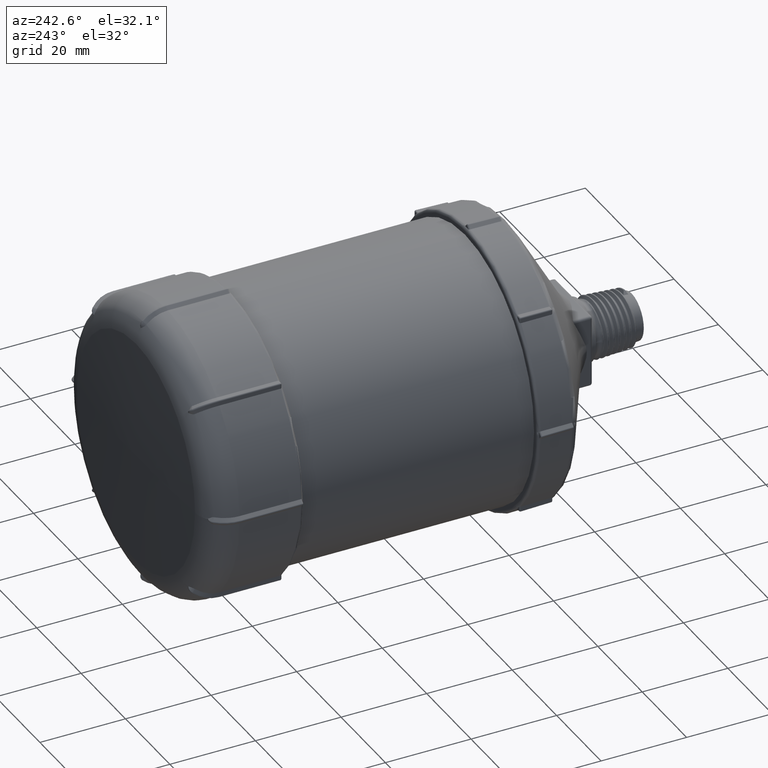
[diagram: clean part render]
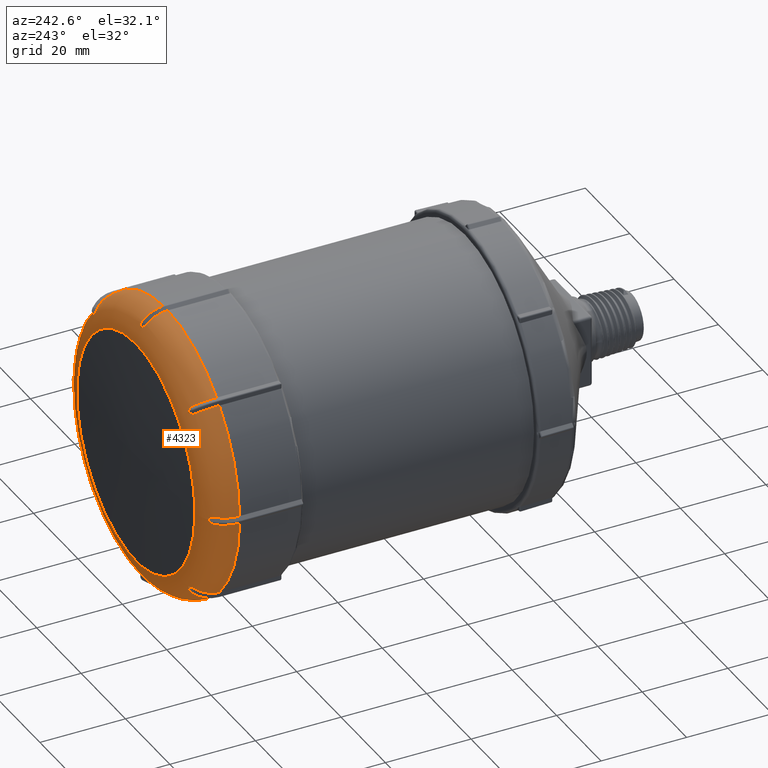
[diagram: same view with one face highlighted and labeled with its STEP entity id]
A machine part, auxiliary view. The second image highlights one B-rep face of the part: STEP entity #4323.
In plain terms, the highlighted toroidal blend (fillet) surface has major radius 26.25 mm and minor (blend) radius 7 mm.
Its self-contained STEP definition (entity closure, byte-faithful):
#154=TOROIDAL_SURFACE('',#4698,26.25,7.);
#235=CIRCLE('',#4504,26.6227180527383);
#236=CIRCLE('',#4505,26.6227180527383);
#257=CIRCLE('',#4529,33.25);
#258=CIRCLE('',#4531,33.25);
#259=CIRCLE('',#4533,33.25);
#260=CIRCLE('',#4535,33.25);
#261=CIRCLE('',#4537,33.25);
#262=CIRCLE('',#4539,33.25);
#263=CIRCLE('',#4541,33.25);
#264=CIRCLE('',#4543,33.25);
#328=CIRCLE('',#4699,7.);
#594=FACE_OUTER_BOUND('',#856,.T.);
#856=EDGE_LOOP('',(#3061,#3062,#3063,#3064,#3065,#3066,#3067,#3068,#3069,
#3070,#3071,#3072,#3073,#3074,#3075,#3076,#3077,#3078,#3079,#3080,#3081,
#3082,#3083,#3084,#3085,#3086,#3087,#3088,#3089,#3090,#3091,#3092,#3093,
#3094,#3095,#3096,#3097,#3098,#3099,#3100,#3101,#3102,#3103,#3104,#3105,
#3106,#3107,#3108,#3109,#3110,#3111,#3112,#3113));
#1041=B_SPLINE_CURVE_WITH_KNOTS('',3,(#6847,#6848,#6849,#6850,#6851,#6852,
#6853,#6854,#6855,#6856),.UNSPECIFIED.,.F.,.F.,(4,2,2,2,4),(-0.266693742537213,
-0.224381580550006,-0.169120604108492,-0.0868780232982851,-0.0166395988727938),
 .UNSPECIFIED.);
#1042=B_SPLINE_CURVE_WITH_KNOTS('',3,(#6861,#6862,#6863,#6864,#6865,#6866,
#6867,#6868),.UNSPECIFIED.,.F.,.F.,(4,2,2,4),(-0.60681111886429,-0.440186208378555,
-0.273579896233568,-0.0567221450146192),.UNSPECIFIED.);
#1043=B_SPLINE_CURVE_WITH_KNOTS('',3,(#6875,#6876,#6877,#6878,#6879,#6880,
#6881,#6882),.UNSPECIFIED.,.F.,.F.,(4,2,2,4),(-0.10109423238601,-0.0638648388179152,
-0.031133432050819,-0.00484871395737871),.UNSPECIFIED.);
#1044=B_SPLINE_CURVE_WITH_KNOTS('',3,(#6887,#6888,#6889,#6890,#6891,#6892,
#6893,#6894,#6895,#6896,#6897,#6898,#6899,#6900),.UNSPECIFIED.,.F.,.F.,
(4,2,2,2,2,2,4),(0.0618802775427655,0.0622922009236153,0.0737745342424055,
0.083668378242921,0.0930614179928642,0.102862978467034,0.110008647193263),
 .UNSPECIFIED.);
#1045=B_SPLINE_CURVE_WITH_KNOTS('',3,(#6907,#6908,#6909,#6910,#6911,#6912,
#6913,#6914),.UNSPECIFIED.,.F.,.F.,(4,2,2,4),(-0.550127142300356,-0.440099110652061,
-0.273358408319301,0.),.UNSPECIFIED.);
#1046=B_SPLINE_CURVE_WITH_KNOTS('',3,(#6924,#6925,#6926,#6927,#6928,#6929,
#6930,#6931),.UNSPECIFIED.,.F.,.F.,(4,2,2,4),(-0.182498993991071,-0.140588883657613,
-0.0724285203282122,-0.0161608932762641),.UNSPECIFIED.);
#1047=B_SPLINE_CURVE_WITH_KNOTS('',3,(#6936,#6937,#6938,#6939,#6940,#6941,
#6942,#6943),.UNSPECIFIED.,.F.,.F.,(4,2,2,4),(-0.589281542167866,-0.431428210677685,
-0.273597307804808,-0.039203287886933),.UNSPECIFIED.);
#1048=B_SPLINE_CURVE_WITH_KNOTS('',3,(#6950,#6951,#6952,#6953,#6954,#6955,
#6956,#6957),.UNSPECIFIED.,.F.,.F.,(4,2,2,4),(-0.101197686285233,-0.0637149132302516,
-0.0311245010484486,-0.0048487129692068),.UNSPECIFIED.);
#1049=B_SPLINE_CURVE_WITH_KNOTS('',3,(#6963,#6964,#6965,#6966,#6967,#6968,
#6969,#6970,#6971,#6972),.UNSPECIFIED.,.F.,.F.,(4,2,2,2,4),(0.0620317330800001,
0.06241652451229,0.0739433385980161,0.0838749257742064,0.086180058831698),
 .UNSPECIFIED.);
#1050=B_SPLINE_CURVE_WITH_KNOTS('',3,(#6974,#6975,#6976,#6977,#6978,#6979,
#6980,#6981),.UNSPECIFIED.,.F.,.F.,(4,2,2,4),(0.086180058831698,0.093302264181356,
0.103131055432892,0.11033379116617),.UNSPECIFIED.);
#1051=B_SPLINE_CURVE_WITH_KNOTS('',3,(#6987,#6988,#6989,#6990,#6991,#6992,
#6993,#6994),.UNSPECIFIED.,.F.,.F.,(4,2,2,4),(-0.55009548811372,-0.43133739867235,
-0.273354942292843,0.),.UNSPECIFIED.);
#1052=B_SPLINE_CURVE_WITH_KNOTS('',3,(#7004,#7005,#7006,#7007,#7008,#7009,
#7010,#7011,#7012,#7013),.UNSPECIFIED.,.F.,.F.,(4,2,2,2,4),(-0.266693742548772,
-0.224381580558012,-0.169120604111871,-0.0868780232985852,-0.0166395988728055),
 .UNSPECIFIED.);
#1053=B_SPLINE_CURVE_WITH_KNOTS('',3,(#7018,#7019,#7020,#7021,#7022,#7023,
#7024,#7025),.UNSPECIFIED.,.F.,.F.,(4,2,2,4),(-0.606811118864284,-0.44018620837856,
-0.273579896233573,-0.0567221450146192),.UNSPECIFIED.);
#1054=B_SPLINE_CURVE_WITH_KNOTS('',3,(#7032,#7033,#7034,#7035,#7036,#7037,
#7038,#7039),.UNSPECIFIED.,.F.,.F.,(4,2,2,4),(-0.101094232386615,-0.0638648388186382,
-0.0311334320512011,-0.00484871395738747),.UNSPECIFIED.);
#1055=B_SPLINE_CURVE_WITH_KNOTS('',3,(#7044,#7045,#7046,#7047,#7048,#7049,
#7050,#7051,#7052,#7053,#7054,#7055,#7056,#7057),.UNSPECIFIED.,.F.,.F.,
(4,2,2,2,2,2,4),(0.0618802657549274,0.0622921890203796,0.0737745198743033,
0.0836683617487379,0.0930613994787556,0.102862957842678,0.110008625053817),
 .UNSPECIFIED.);
#1056=B_SPLINE_CURVE_WITH_KNOTS('',3,(#7064,#7065,#7066,#7067,#7068,#7069,
#7070,#7071),.UNSPECIFIED.,.F.,.F.,(4,2,2,4),(-0.550127142300375,-0.440099110652069,
-0.273358408319302,0.),.UNSPECIFIED.);
#1057=B_SPLINE_CURVE_WITH_KNOTS('',3,(#7081,#7082,#7083,#7084,#7085,#7086,
#7087,#7088),.UNSPECIFIED.,.F.,.F.,(4,2,2,4),(-0.182498993991008,-0.140588883657568,
-0.0724285203281928,-0.016160893276263),.UNSPECIFIED.);
#1058=B_SPLINE_CURVE_WITH_KNOTS('',3,(#7093,#7094,#7095,#7096,#7097,#7098,
#7099,#7100),.UNSPECIFIED.,.F.,.F.,(4,2,2,4),(-0.589281542167862,-0.431428210677677,
-0.273597307804806,-0.039203287886933),.UNSPECIFIED.);
#1059=B_SPLINE_CURVE_WITH_KNOTS('',3,(#7107,#7108,#7109,#7110,#7111,#7112,
#7113,#7114),.UNSPECIFIED.,.F.,.F.,(4,2,2,4),(-0.10119768628387,-0.0637149132293729,
-0.0311245010481266,-0.00484871296919956),.UNSPECIFIED.);
#1060=B_SPLINE_CURVE_WITH_KNOTS('',3,(#7119,#7120,#7121,#7122,#7123,#7124,
#7125,#7126,#7127,#7128,#7129,#7130,#7131,#7132),.UNSPECIFIED.,.F.,.F.,
(4,2,2,2,2,2,4),(0.0620316763252,0.0624164672322218,0.0739432694393886,
0.083874846370399,0.0933021750456147,0.103130956139006,0.110333684539472),
 .UNSPECIFIED.);
#1061=B_SPLINE_CURVE_WITH_KNOTS('',3,(#7139,#7140,#7141,#7142,#7143,#7144,
#7145,#7146),.UNSPECIFIED.,.F.,.F.,(4,2,2,4),(-0.550095488113724,-0.431337398672351,
-0.273354942292843,0.),.UNSPECIFIED.);
#1062=B_SPLINE_CURVE_WITH_KNOTS('',3,(#7156,#7157,#7158,#7159,#7160,#7161,
#7162,#7163,#7164,#7165),.UNSPECIFIED.,.F.,.F.,(4,2,2,2,4),(-0.266693742541709,
-0.22438158055317,-0.169120604109935,-0.0868780232984713,-0.0166395988728016),
 .UNSPECIFIED.);
#1063=B_SPLINE_CURVE_WITH_KNOTS('',3,(#7170,#7171,#7172,#7173,#7174,#7175,
#7176,#7177),.UNSPECIFIED.,.F.,.F.,(4,2,2,4),(-0.606811118864268,-0.440186208378543,
-0.273579896233563,-0.0567221450146181),.UNSPECIFIED.);
#1064=B_SPLINE_CURVE_WITH_KNOTS('',3,(#7184,#7185,#7186,#7187,#7188,#7189,
#7190,#7191),.UNSPECIFIED.,.F.,.F.,(4,2,2,4),(-0.101094232385515,-0.0638648388175834,
-0.0311334320506976,-0.00484871395737683),.UNSPECIFIED.);
#1065=B_SPLINE_CURVE_WITH_KNOTS('',3,(#7196,#7197,#7198,#7199,#7200,#7201,
#7202,#7203,#7204,#7205,#7206,#7207,#7208,#7209),.UNSPECIFIED.,.F.,.F.,
(4,2,2,2,2,2,4),(0.0618802680001307,0.0622921912875559,0.0737745226108094,
0.083668364890063,0.093061403004688,0.102862961770424,0.110008629270054),
 .UNSPECIFIED.);
#1066=B_SPLINE_CURVE_WITH_KNOTS('',3,(#7216,#7217,#7218,#7219,#7220,#7221,
#7222,#7223),.UNSPECIFIED.,.F.,.F.,(4,2,2,4),(-0.550127142300358,-0.440099110652059,
-0.273358408319299,0.),.UNSPECIFIED.);
#1067=B_SPLINE_CURVE_WITH_KNOTS('',3,(#7233,#7234,#7235,#7236,#7237,#7238,
#7239,#7240),.UNSPECIFIED.,.F.,.F.,(4,2,2,4),(-0.182498993991151,-0.140588883657601,
-0.0724285203282056,-0.0161608932762638),.UNSPECIFIED.);
#1068=B_SPLINE_CURVE_WITH_KNOTS('',3,(#7245,#7246,#7247,#7248,#7249,#7250,
#7251,#7252),.UNSPECIFIED.,.F.,.F.,(4,2,2,4),(-0.589281542167862,-0.431428210677677,
-0.273597307804806,-0.0392032878869331),.UNSPECIFIED.);
#1069=B_SPLINE_CURVE_WITH_KNOTS('',3,(#7259,#7260,#7261,#7262,#7263,#7264,
#7265,#7266),.UNSPECIFIED.,.F.,.F.,(4,2,2,4),(-0.101197686284344,-0.0637149132296148,
-0.0311245010481929,-0.0048487129692011),.UNSPECIFIED.);
#1070=B_SPLINE_CURVE_WITH_KNOTS('',3,(#7271,#7272,#7273,#7274,#7275,#7276,
#7277,#7278,#7279,#7280,#7281,#7282,#7283,#7284),.UNSPECIFIED.,.F.,.F.,
(4,2,2,2,2,2,4),(0.0620317267717083,0.0624165181456156,0.073943330911126,
0.0838749169486331,0.0933022542741401,0.103131044396664,0.110333779314955),
 .UNSPECIFIED.);
#1071=B_SPLINE_CURVE_WITH_KNOTS('',3,(#7291,#7292,#7293,#7294,#7295,#7296,
#7297,#7298),.UNSPECIFIED.,.F.,.F.,(4,2,2,4),(-0.550095488113724,-0.431337398672351,
-0.273354942292844,0.),.UNSPECIFIED.);
#1072=B_SPLINE_CURVE_WITH_KNOTS('',3,(#7308,#7309,#7310,#7311,#7312,#7313,
#7314,#7315,#7316,#7317),.UNSPECIFIED.,.F.,.F.,(4,2,2,2,4),(-0.266693742544422,
-0.224381580555024,-0.169120604110687,-0.0868780232985246,-0.016639598872803),
 .UNSPECIFIED.);
#1073=B_SPLINE_CURVE_WITH_KNOTS('',3,(#7322,#7323,#7324,#7325,#7326,#7327,
#7328,#7329),.UNSPECIFIED.,.F.,.F.,(4,2,2,4),(-0.606811118864274,-0.440186208378549,
-0.273579896233567,-0.0567221450146185),.UNSPECIFIED.);
#1074=B_SPLINE_CURVE_WITH_KNOTS('',3,(#7336,#7337,#7338,#7339,#7340,#7341,
#7342,#7343),.UNSPECIFIED.,.F.,.F.,(4,2,2,4),(-0.101094232386237,-0.0638648388183031,
-0.0311334320510512,-0.00484871395738433),.UNSPECIFIED.);
#1075=B_SPLINE_CURVE_WITH_KNOTS('',3,(#7348,#7349,#7350,#7351,#7352,#7353,
#7354,#7355,#7356,#7357,#7358,#7359,#7360,#7361),.UNSPECIFIED.,.F.,.F.,
(4,2,2,2,2,2,4),(0.0618802657549827,0.0622921890204326,0.0737745198743047,
0.0836683617486942,0.0930613994786701,0.102862957842549,0.110008625053662),
 .UNSPECIFIED.);
#1076=B_SPLINE_CURVE_WITH_KNOTS('',3,(#7368,#7369,#7370,#7371,#7372,#7373,
#7374,#7375),.UNSPECIFIED.,.F.,.F.,(4,2,2,4),(-0.550127142300358,-0.440099110652059,
-0.273358408319299,0.),.UNSPECIFIED.);
#1077=B_SPLINE_CURVE_WITH_KNOTS('',3,(#7385,#7386,#7387,#7388,#7389,#7390,
#7391,#7392),.UNSPECIFIED.,.F.,.F.,(4,2,2,4),(-0.565831572029104,-0.420371247861546,
-0.275267212824914,-0.0157711149884324),.UNSPECIFIED.);
#1078=B_SPLINE_CURVE_WITH_KNOTS('',3,(#7394,#7395,#7396,#7397,#7398,#7399,
#7400,#7401,#7402,#7403,#7404,#7405),.UNSPECIFIED.,.F.,.F.,(4,2,2,2,2,4),
(-0.165384805071305,-0.15429783330736,-0.132961413190081,-0.0844267115698874,
-0.0418224386313113,-0.00155470645280122),.UNSPECIFIED.);
#1079=B_SPLINE_CURVE_WITH_KNOTS('',3,(#7407,#7408,#7409,#7410,#7411,#7412,
#7413,#7414,#7415,#7416,#7417,#7418),.UNSPECIFIED.,.F.,.F.,(4,2,2,2,2,4),
(0.,0.0119472215682938,0.0221954810434297,0.0319006000091722,0.0410202241731146,
0.0496896925043201),.UNSPECIFIED.);
#1080=B_SPLINE_CURVE_WITH_KNOTS('',3,(#7420,#7421,#7422,#7423,#7424,#7425,
#7426,#7427,#7428,#7429),.UNSPECIFIED.,.F.,.F.,(4,2,2,2,4),(-0.13030314548922,
-0.0776834043144477,-0.0412652044363636,-0.0168007444675564,-0.00486365675889868),
 .UNSPECIFIED.);
#1081=B_SPLINE_CURVE_WITH_KNOTS('',3,(#7430,#7431,#7432,#7433,#7434,#7435,
#7436,#7437),.UNSPECIFIED.,.F.,.F.,(4,2,2,4),(-0.55004662073099,-0.419857439276201,
-0.273129354538646,0.),.UNSPECIFIED.);
#1615=VERTEX_POINT('',#6332);
#1616=VERTEX_POINT('',#6334);
#1652=VERTEX_POINT('',#6699);
#1653=VERTEX_POINT('',#6701);
#1654=VERTEX_POINT('',#6705);
#1655=VERTEX_POINT('',#6707);
#1656=VERTEX_POINT('',#6711);
#1657=VERTEX_POINT('',#6713);
#1658=VERTEX_POINT('',#6717);
#1659=VERTEX_POINT('',#6719);
#1660=VERTEX_POINT('',#6723);
#1661=VERTEX_POINT('',#6725);
#1662=VERTEX_POINT('',#6729);
#1663=VERTEX_POINT('',#6731);
#1664=VERTEX_POINT('',#6735);
#1665=VERTEX_POINT('',#6737);
#1666=VERTEX_POINT('',#6741);
#1667=VERTEX_POINT('',#6743);
#1689=VERTEX_POINT('',#6845);
#1690=VERTEX_POINT('',#6846);
#1693=VERTEX_POINT('',#6873);
#1694=VERTEX_POINT('',#6874);
#1697=VERTEX_POINT('',#6922);
#1698=VERTEX_POINT('',#6923);
#1701=VERTEX_POINT('',#6948);
#1702=VERTEX_POINT('',#6949);
#1704=VERTEX_POINT('',#6962);
#1706=VERTEX_POINT('',#7002);
#1707=VERTEX_POINT('',#7003);
#1710=VERTEX_POINT('',#7030);
#1711=VERTEX_POINT('',#7031);
#1714=VERTEX_POINT('',#7079);
#1715=VERTEX_POINT('',#7080);
#1718=VERTEX_POINT('',#7105);
#1719=VERTEX_POINT('',#7106);
#1722=VERTEX_POINT('',#7154);
#1723=VERTEX_POINT('',#7155);
#1726=VERTEX_POINT('',#7182);
#1727=VERTEX_POINT('',#7183);
#1730=VERTEX_POINT('',#7231);
#1731=VERTEX_POINT('',#7232);
#1734=VERTEX_POINT('',#7257);
#1735=VERTEX_POINT('',#7258);
#1738=VERTEX_POINT('',#7306);
#1739=VERTEX_POINT('',#7307);
#1742=VERTEX_POINT('',#7334);
#1743=VERTEX_POINT('',#7335);
#1746=VERTEX_POINT('',#7384);
#1747=VERTEX_POINT('',#7393);
#1748=VERTEX_POINT('',#7406);
#1749=VERTEX_POINT('',#7419);
#2005=EDGE_CURVE('',#1615,#1616,#235,.T.);
#2006=EDGE_CURVE('',#1616,#1615,#236,.T.);
#2044=EDGE_CURVE('',#1653,#1652,#257,.T.);
#2047=EDGE_CURVE('',#1655,#1654,#258,.T.);
#2050=EDGE_CURVE('',#1657,#1656,#259,.T.);
#2053=EDGE_CURVE('',#1659,#1658,#260,.T.);
#2056=EDGE_CURVE('',#1661,#1660,#261,.T.);
#2059=EDGE_CURVE('',#1663,#1662,#262,.T.);
#2062=EDGE_CURVE('',#1665,#1664,#263,.T.);
#2065=EDGE_CURVE('',#1667,#1666,#264,.T.);
#2116=EDGE_CURVE('',#1689,#1690,#1041,.T.);
#2119=EDGE_CURVE('',#1658,#1689,#1042,.T.);
#2122=EDGE_CURVE('',#1693,#1694,#1043,.T.);
#2125=EDGE_CURVE('',#1690,#1693,#1044,.T.);
#2129=EDGE_CURVE('',#1694,#1661,#1045,.T.);
#2133=EDGE_CURVE('',#1697,#1698,#1046,.T.);
#2136=EDGE_CURVE('',#1656,#1697,#1047,.T.);
#2139=EDGE_CURVE('',#1701,#1702,#1048,.T.);
#2142=EDGE_CURVE('',#1698,#1704,#1049,.T.);
#2144=EDGE_CURVE('',#1704,#1701,#1050,.T.);
#2147=EDGE_CURVE('',#1702,#1659,#1051,.T.);
#2151=EDGE_CURVE('',#1706,#1707,#1052,.T.);
#2154=EDGE_CURVE('',#1654,#1706,#1053,.T.);
#2157=EDGE_CURVE('',#1710,#1711,#1054,.T.);
#2160=EDGE_CURVE('',#1707,#1710,#1055,.T.);
#2164=EDGE_CURVE('',#1711,#1657,#1056,.T.);
#2168=EDGE_CURVE('',#1714,#1715,#1057,.T.);
#2171=EDGE_CURVE('',#1652,#1714,#1058,.T.);
#2174=EDGE_CURVE('',#1718,#1719,#1059,.T.);
#2177=EDGE_CURVE('',#1715,#1718,#1060,.T.);
#2181=EDGE_CURVE('',#1719,#1655,#1061,.T.);
#2185=EDGE_CURVE('',#1722,#1723,#1062,.T.);
#2188=EDGE_CURVE('',#1666,#1722,#1063,.T.);
#2191=EDGE_CURVE('',#1726,#1727,#1064,.T.);
#2194=EDGE_CURVE('',#1723,#1726,#1065,.T.);
#2198=EDGE_CURVE('',#1727,#1653,#1066,.T.);
#2202=EDGE_CURVE('',#1730,#1731,#1067,.T.);
#2205=EDGE_CURVE('',#1664,#1730,#1068,.T.);
#2208=EDGE_CURVE('',#1734,#1735,#1069,.T.);
#2211=EDGE_CURVE('',#1731,#1734,#1070,.T.);
#2215=EDGE_CURVE('',#1735,#1667,#1071,.T.);
#2219=EDGE_CURVE('',#1738,#1739,#1072,.T.);
#2222=EDGE_CURVE('',#1662,#1738,#1073,.T.);
#2225=EDGE_CURVE('',#1742,#1743,#1074,.T.);
#2228=EDGE_CURVE('',#1739,#1742,#1075,.T.);
#2232=EDGE_CURVE('',#1743,#1665,#1076,.T.);
#2236=EDGE_CURVE('',#1615,#1704,#328,.T.);
#2237=EDGE_CURVE('',#1660,#1746,#1077,.T.);
#2238=EDGE_CURVE('',#1746,#1747,#1078,.T.);
#2239=EDGE_CURVE('',#1747,#1748,#1079,.T.);
#2240=EDGE_CURVE('',#1748,#1749,#1080,.T.);
#2241=EDGE_CURVE('',#1749,#1663,#1081,.T.);
#3061=ORIENTED_EDGE('',*,*,#2006,.F.);
#3062=ORIENTED_EDGE('',*,*,#2005,.F.);
#3063=ORIENTED_EDGE('',*,*,#2236,.T.);
#3064=ORIENTED_EDGE('',*,*,#2144,.T.);
#3065=ORIENTED_EDGE('',*,*,#2139,.T.);
#3066=ORIENTED_EDGE('',*,*,#2147,.T.);
#3067=ORIENTED_EDGE('',*,*,#2053,.T.);
#3068=ORIENTED_EDGE('',*,*,#2119,.T.);
#3069=ORIENTED_EDGE('',*,*,#2116,.T.);
#3070=ORIENTED_EDGE('',*,*,#2125,.T.);
#3071=ORIENTED_EDGE('',*,*,#2122,.T.);
#3072=ORIENTED_EDGE('',*,*,#2129,.T.);
#3073=ORIENTED_EDGE('',*,*,#2056,.T.);
#3074=ORIENTED_EDGE('',*,*,#2237,.T.);
#3075=ORIENTED_EDGE('',*,*,#2238,.T.);
#3076=ORIENTED_EDGE('',*,*,#2239,.T.);
#3077=ORIENTED_EDGE('',*,*,#2240,.T.);
#3078=ORIENTED_EDGE('',*,*,#2241,.T.);
#3079=ORIENTED_EDGE('',*,*,#2059,.T.);
#3080=ORIENTED_EDGE('',*,*,#2222,.T.);
#3081=ORIENTED_EDGE('',*,*,#2219,.T.);
#3082=ORIENTED_EDGE('',*,*,#2228,.T.);
#3083=ORIENTED_EDGE('',*,*,#2225,.T.);
#3084=ORIENTED_EDGE('',*,*,#2232,.T.);
#3085=ORIENTED_EDGE('',*,*,#2062,.T.);
#3086=ORIENTED_EDGE('',*,*,#2205,.T.);
#3087=ORIENTED_EDGE('',*,*,#2202,.T.);
#3088=ORIENTED_EDGE('',*,*,#2211,.T.);
#3089=ORIENTED_EDGE('',*,*,#2208,.T.);
#3090=ORIENTED_EDGE('',*,*,#2215,.T.);
#3091=ORIENTED_EDGE('',*,*,#2065,.T.);
#3092=ORIENTED_EDGE('',*,*,#2188,.T.);
#3093=ORIENTED_EDGE('',*,*,#2185,.T.);
#3094=ORIENTED_EDGE('',*,*,#2194,.T.);
#3095=ORIENTED_EDGE('',*,*,#2191,.T.);
#3096=ORIENTED_EDGE('',*,*,#2198,.T.);
#3097=ORIENTED_EDGE('',*,*,#2044,.T.);
#3098=ORIENTED_EDGE('',*,*,#2171,.T.);
#3099=ORIENTED_EDGE('',*,*,#2168,.T.);
#3100=ORIENTED_EDGE('',*,*,#2177,.T.);
#3101=ORIENTED_EDGE('',*,*,#2174,.T.);
#3102=ORIENTED_EDGE('',*,*,#2181,.T.);
#3103=ORIENTED_EDGE('',*,*,#2047,.T.);
#3104=ORIENTED_EDGE('',*,*,#2154,.T.);
#3105=ORIENTED_EDGE('',*,*,#2151,.T.);
#3106=ORIENTED_EDGE('',*,*,#2160,.T.);
#3107=ORIENTED_EDGE('',*,*,#2157,.T.);
#3108=ORIENTED_EDGE('',*,*,#2164,.T.);
#3109=ORIENTED_EDGE('',*,*,#2050,.T.);
#3110=ORIENTED_EDGE('',*,*,#2136,.T.);
#3111=ORIENTED_EDGE('',*,*,#2133,.T.);
#3112=ORIENTED_EDGE('',*,*,#2142,.T.);
#3113=ORIENTED_EDGE('',*,*,#2236,.F.);
#4323=ADVANCED_FACE('',(#594),#154,.T.);
#4504=AXIS2_PLACEMENT_3D('',#6335,#4993,#4994);
#4505=AXIS2_PLACEMENT_3D('',#6336,#4995,#4996);
#4529=AXIS2_PLACEMENT_3D('',#6702,#5044,#5045);
#4531=AXIS2_PLACEMENT_3D('',#6708,#5050,#5051);
#4533=AXIS2_PLACEMENT_3D('',#6714,#5056,#5057);
#4535=AXIS2_PLACEMENT_3D('',#6720,#5062,#5063);
#4537=AXIS2_PLACEMENT_3D('',#6726,#5068,#5069);
#4539=AXIS2_PLACEMENT_3D('',#6732,#5074,#5075);
#4541=AXIS2_PLACEMENT_3D('',#6738,#5080,#5081);
#4543=AXIS2_PLACEMENT_3D('',#6744,#5086,#5087);
#4698=AXIS2_PLACEMENT_3D('',#7382,#5467,#5468);
#4699=AXIS2_PLACEMENT_3D('',#7383,#5469,#5470);
#4993=DIRECTION('center_axis',(-1.59033251244329E-15,1.,1.08596977349049E-16));
#4994=DIRECTION('ref_axis',(1.,1.59033251244329E-15,-6.12323399573757E-17));
#4995=DIRECTION('center_axis',(-1.59033251244329E-15,1.,1.08596977349049E-16));
#4996=DIRECTION('ref_axis',(1.,1.59033251244329E-15,-6.12323399573757E-17));
#5044=DIRECTION('center_axis',(-1.59033251244329E-15,1.,1.08596977349049E-16));
#5045=DIRECTION('ref_axis',(-0.707106781186548,-1.20132456298996E-15,0.707106781186547));
#5050=DIRECTION('center_axis',(-1.59033251244329E-15,1.,1.08596977349049E-16));
#5051=DIRECTION('ref_axis',(-0.707106781186548,-1.20132456298996E-15,0.707106781186547));
#5056=DIRECTION('center_axis',(-1.59033251244329E-15,1.,1.08596977349049E-16));
#5057=DIRECTION('ref_axis',(-0.707106781186548,-1.20132456298996E-15,0.707106781186547));
#5062=DIRECTION('center_axis',(-1.59033251244329E-15,1.,1.08596977349049E-16));
#5063=DIRECTION('ref_axis',(-0.707106781186548,-1.20132456298996E-15,0.707106781186547));
#5068=DIRECTION('center_axis',(-1.59033251244329E-15,1.,1.08596977349049E-16));
#5069=DIRECTION('ref_axis',(-0.707106781186548,-1.20132456298996E-15,0.707106781186547));
#5074=DIRECTION('center_axis',(-1.59033251244329E-15,1.,1.08596977349049E-16));
#5075=DIRECTION('ref_axis',(-0.707106781186548,-1.20132456298996E-15,0.707106781186547));
#5080=DIRECTION('center_axis',(-1.59033251244329E-15,1.,1.08596977349049E-16));
#5081=DIRECTION('ref_axis',(-0.707106781186548,-1.20132456298996E-15,0.707106781186547));
#5086=DIRECTION('center_axis',(-1.59033251244329E-15,1.,1.08596977349049E-16));
#5087=DIRECTION('ref_axis',(-0.707106781186548,-1.20132456298996E-15,0.707106781186547));
#5467=DIRECTION('center_axis',(-1.59033251244329E-15,1.,1.08596977349049E-16));
#5468=DIRECTION('ref_axis',(1.,1.70957650709197E-15,-6.12323399573757E-17));
#5469=DIRECTION('center_axis',(1.83697019872111E-16,-1.08596977349049E-16,
1.));
#5470=DIRECTION('ref_axis',(-1.,-1.60272797539872E-15,1.83697019872111E-16));
#6332=CARTESIAN_POINT('',(-26.6227180527385,116.840227274795,-7.06232538034692E-15));
#6334=CARTESIAN_POINT('',(-1.61388891941824E-13,116.840227274795,26.6227180527383));
#6335=CARTESIAN_POINT('Origin',(-1.63019063264218E-13,116.840227274795,
-1.19528393475304E-14));
#6336=CARTESIAN_POINT('Origin',(-1.63019063264218E-13,116.840227274795,
-1.19528393475304E-14));
#6699=CARTESIAN_POINT('',(0.886072549972962,109.850157085365,-33.2381915187387));
#6701=CARTESIAN_POINT('',(22.8764027085679,109.850157085365,-24.1294985259867));
#6702=CARTESIAN_POINT('Origin',(-1.51902527377706E-13,109.850157085365,
-1.27119398415602E-14));
#6705=CARTESIAN_POINT('',(-22.8764027085682,109.850157085365,-24.1294985259866));
#6707=CARTESIAN_POINT('',(-0.886072549973352,109.850157085365,-33.2381915187387));
#6708=CARTESIAN_POINT('Origin',(-1.51902527377706E-13,109.850157085365,
-1.27119398415602E-14));
#6711=CARTESIAN_POINT('',(-33.2381915187389,109.850157085365,-0.886072549973127));
#6713=CARTESIAN_POINT('',(-24.1294985259868,109.850157085365,-22.876402708568));
#6714=CARTESIAN_POINT('Origin',(-1.51902527377706E-13,109.850157085365,
-1.27119398415602E-14));
#6717=CARTESIAN_POINT('',(-24.1294985259867,109.850157085365,22.8764027085681));
#6719=CARTESIAN_POINT('',(-33.2381915187389,109.850157085365,0.886072549973187));
#6720=CARTESIAN_POINT('Origin',(-1.51902527377706E-13,109.850157085365,
-1.27119398415602E-14));
#6723=CARTESIAN_POINT('',(-0.886072549973266,109.850157085365,33.2381915187387));
#6725=CARTESIAN_POINT('',(-22.8764027085682,109.850157085365,24.1294985259866));
#6726=CARTESIAN_POINT('Origin',(-1.51902527377706E-13,109.850157085365,
-1.27119398415602E-14));
#6729=CARTESIAN_POINT('',(22.8764027085679,109.850157085365,24.1294985259866));
#6731=CARTESIAN_POINT('',(0.886072549973051,109.850157085365,33.2381915187387));
#6732=CARTESIAN_POINT('Origin',(-1.51902527377706E-13,109.850157085365,
-1.27119398415602E-14));
#6735=CARTESIAN_POINT('',(33.2381915187386,109.850157085365,0.886072549973101));
#6737=CARTESIAN_POINT('',(24.1294985259865,109.850157085365,22.876402708568));
#6738=CARTESIAN_POINT('Origin',(-1.51902527377706E-13,109.850157085365,
-1.27119398415602E-14));
#6741=CARTESIAN_POINT('',(24.1294985259864,109.850157085365,-22.8764027085681));
#6743=CARTESIAN_POINT('',(33.2381915187386,109.850157085365,-0.886072549973217));
#6744=CARTESIAN_POINT('Origin',(-1.51902527377706E-13,109.850157085365,
-1.27119398415602E-14));
#6845=CARTESIAN_POINT('',(-22.6815825250765,114.793651532849,21.4326803803664));
#6846=CARTESIAN_POINT('',(-21.5233979390734,115.610463982389,21.2233979390732));
#6847=CARTESIAN_POINT('Ctrl Pts',(-22.6815825250765,114.793651532849,21.4326803803664));
#6848=CARTESIAN_POINT('Ctrl Pts',(-22.6535812266183,114.83327648168,21.4047648906101));
#6849=CARTESIAN_POINT('Ctrl Pts',(-22.621576459265,114.871999977159,21.3810311939859));
#6850=CARTESIAN_POINT('Ctrl Pts',(-22.5383204445302,114.960612964414,21.3341394658392));
#6851=CARTESIAN_POINT('Ctrl Pts',(-22.4856177790945,115.008712008126,21.3142273237208));
#6852=CARTESIAN_POINT('Ctrl Pts',(-22.3475388823983,115.122648732595,21.2756884605646));
#6853=CARTESIAN_POINT('Ctrl Pts',(-22.2320938308902,115.208504881699,21.2551492700056));
#6854=CARTESIAN_POINT('Ctrl Pts',(-21.9015376756673,115.412262142651,21.2308223951055));
#6855=CARTESIAN_POINT('Ctrl Pts',(-21.7240093948715,115.510538568879,21.2260698877402));
#6856=CARTESIAN_POINT('Ctrl Pts',(-21.5233979390734,115.610463982389,21.2233979390732));
#6861=CARTESIAN_POINT('Ctrl Pts',(-24.1294985259867,109.850157085365,22.8764027085644));
#6862=CARTESIAN_POINT('Ctrl Pts',(-24.1294985259867,110.405569122682,22.8764027085644));
#6863=CARTESIAN_POINT('Ctrl Pts',(-24.0826777363435,110.95900819319,22.8297094168846));
#6864=CARTESIAN_POINT('Ctrl Pts',(-23.8973823610687,112.038505366355,22.6449266879857));
#6865=CARTESIAN_POINT('Ctrl Pts',(-23.7595760412583,112.560733118463,22.5075037170883));
#6866=CARTESIAN_POINT('Ctrl Pts',(-23.3451433126801,113.697077618459,22.0942542829062));
#6867=CARTESIAN_POINT('Ctrl Pts',(-23.0420491035047,114.283551269225,21.7920423254063));
#6868=CARTESIAN_POINT('Ctrl Pts',(-22.6815825250765,114.793651532849,21.4326803803664));
#6873=CARTESIAN_POINT('',(-21.2233979390733,115.610463982389,21.5233979390732));
#6874=CARTESIAN_POINT('',(-21.4326803803665,114.793651532849,22.6815825250764));
#6875=CARTESIAN_POINT('Ctrl Pts',(-21.2233979390733,115.610463982389,21.5233979390732));
#6876=CARTESIAN_POINT('Ctrl Pts',(-21.2266868141413,115.487466783674,21.7703285869091));
#6877=CARTESIAN_POINT('Ctrl Pts',(-21.2331109457141,115.364050168088,21.9877788067739));
#6878=CARTESIAN_POINT('Ctrl Pts',(-21.2682591353527,115.146616554502,22.3189739354275));
#6879=CARTESIAN_POINT('Ctrl Pts',(-21.2932770696591,115.058960932661,22.4304711852694));
#6880=CARTESIAN_POINT('Ctrl Pts',(-21.3545445189983,114.916891274393,22.5832179290115));
#6881=CARTESIAN_POINT('Ctrl Pts',(-21.389052975245,114.855578932678,22.6378210148027));
#6882=CARTESIAN_POINT('Ctrl Pts',(-21.4326803803665,114.793651532849,22.6815825250764));
#6887=CARTESIAN_POINT('Ctrl Pts',(-21.5233979390734,115.610463982389,21.2233979390732));
#6888=CARTESIAN_POINT('Ctrl Pts',(-21.5221253677172,115.611097855557,21.2233809896655));
#6889=CARTESIAN_POINT('Ctrl Pts',(-21.5208528707267,115.611727401871,21.2233721665505));
#6890=CARTESIAN_POINT('Ctrl Pts',(-21.4841135839075,115.62977999319,21.223352069084));
#6891=CARTESIAN_POINT('Ctrl Pts',(-21.4476689987737,115.644360517861,21.2296459903807));
#6892=CARTESIAN_POINT('Ctrl Pts',(-21.3817176577435,115.663790952122,21.2551893216993));
#6893=CARTESIAN_POINT('Ctrl Pts',(-21.3528280408679,115.669444109059,21.2722115561713));
#6894=CARTESIAN_POINT('Ctrl Pts',(-21.3026318393145,115.672945550281,21.3150653901852));
#6895=CARTESIAN_POINT('Ctrl Pts',(-21.2818868707702,115.671110910244,21.3396718954383));
#6896=CARTESIAN_POINT('Ctrl Pts',(-21.2484777214211,115.660460441981,21.3953542886017));
#6897=CARTESIAN_POINT('Ctrl Pts',(-21.2367501118229,115.651526948166,21.4257266369419));
#6898=CARTESIAN_POINT('Ctrl Pts',(-21.2252171429133,115.631277477874,21.4790563969097));
#6899=CARTESIAN_POINT('Ctrl Pts',(-21.2231057740873,115.621390355116,21.5014620224485));
#6900=CARTESIAN_POINT('Ctrl Pts',(-21.2233979390733,115.610463982389,21.5233979390732));
#6907=CARTESIAN_POINT('Ctrl Pts',(-21.4326803803665,114.793651532849,22.6815825250764));
#6908=CARTESIAN_POINT('Ctrl Pts',(-21.6152915394741,114.534442115472,22.8647550079028));
#6909=CARTESIAN_POINT('Ctrl Pts',(-21.7834148645553,114.255132221388,23.0333827969854));
#6910=CARTESIAN_POINT('Ctrl Pts',(-22.1657785055369,113.508232808405,23.416875524841));
#6911=CARTESIAN_POINT('Ctrl Pts',(-22.3574850012699,113.021000789538,23.6091301023689));
#6912=CARTESIAN_POINT('Ctrl Pts',(-22.7507272857991,111.663821287865,24.0034829128982));
#6913=CARTESIAN_POINT('Ctrl Pts',(-22.8764027085645,110.761351779762,24.1294985259866));
#6914=CARTESIAN_POINT('Ctrl Pts',(-22.8764027085645,109.850157085365,24.1294985259866));
#6922=CARTESIAN_POINT('',(-31.1934944474849,114.793651532849,-0.883107175562808));
#6923=CARTESIAN_POINT('',(-30.2265492394346,115.610463982389,-0.212132034355975));
#6924=CARTESIAN_POINT('Ctrl Pts',(-31.1934944474849,114.793651532849,-0.883107175562829));
#6925=CARTESIAN_POINT('Ctrl Pts',(-31.1260175274526,114.861274892761,-0.883003626930938));
#6926=CARTESIAN_POINT('Ctrl Pts',(-31.0571232359406,114.928150420946,-0.866080772976946));
#6927=CARTESIAN_POINT('Ctrl Pts',(-30.8614546404103,115.110642023448,-0.775766012794781));
#6928=CARTESIAN_POINT('Ctrl Pts',(-30.7310782008312,115.225048389809,-0.676146829015816));
#6929=CARTESIAN_POINT('Ctrl Pts',(-30.4710032549899,115.434054918942,-0.448148288316207));
#6930=CARTESIAN_POINT('Ctrl Pts',(-30.3484701740714,115.525708595663,-0.330847921540547));
#6931=CARTESIAN_POINT('Ctrl Pts',(-30.2265492394346,115.610463982389,-0.212132034355986));
#6936=CARTESIAN_POINT('Ctrl Pts',(-33.2381915187362,109.850157085365,-0.886072549975766));
#6937=CARTESIAN_POINT('Ctrl Pts',(-33.2381915187362,110.376330960001,-0.886072549975767));
#6938=CARTESIAN_POINT('Ctrl Pts',(-33.1788457125181,110.900827494224,-0.885991593970392));
#6939=CARTESIAN_POINT('Ctrl Pts',(-32.9437347244999,111.926498846706,-0.885666261805477));
#6940=CARTESIAN_POINT('Ctrl Pts',(-32.7687353512392,112.42440855609,-0.885422920216483));
#6941=CARTESIAN_POINT('Ctrl Pts',(-32.1993307576823,113.601308510588,-0.884612350147838));
#6942=CARTESIAN_POINT('Ctrl Pts',(-31.7440804465309,114.241870640092,-0.88395209300887));
#6943=CARTESIAN_POINT('Ctrl Pts',(-31.1934944474849,114.793651532849,-0.883107175562825));
#6948=CARTESIAN_POINT('',(-30.2265492394346,115.610463982389,0.21213203435595));
#6949=CARTESIAN_POINT('',(-31.1934944474849,114.793651532849,0.883107175562882));
#6950=CARTESIAN_POINT('Ctrl Pts',(-30.2265492394346,115.610463982389,0.21213203435596));
#6951=CARTESIAN_POINT('Ctrl Pts',(-30.4042196267348,115.486953426714,0.385131837200367));
#6952=CARTESIAN_POINT('Ctrl Pts',(-30.5631604722453,115.362978632906,0.534935672398073));
#6953=CARTESIAN_POINT('Ctrl Pts',(-30.8217869538809,115.145737917435,0.743572399401087));
#6954=CARTESIAN_POINT('Ctrl Pts',(-30.9177926407857,115.058555610009,0.804313769471024));
#6955=CARTESIAN_POINT('Ctrl Pts',(-31.0687324558081,114.916849687844,0.868812912832828));
#6956=CARTESIAN_POINT('Ctrl Pts',(-31.1317221224403,114.855557917538,0.883012381079911));
#6957=CARTESIAN_POINT('Ctrl Pts',(-31.1934944474849,114.793651532849,0.883107175562884));
#6962=CARTESIAN_POINT('',(-30.1368752660789,115.671857924977,-6.52138028107101E-15));
#6963=CARTESIAN_POINT('Ctrl Pts',(-30.2265492394346,115.610463982389,-0.212132034355991));
#6964=CARTESIAN_POINT('Ctrl Pts',(-30.225700696361,115.611053861367,-0.211305797712573));
#6965=CARTESIAN_POINT('Ctrl Pts',(-30.2248571738483,115.611639994086,-0.210474629238921));
#6966=CARTESIAN_POINT('Ctrl Pts',(-30.1989016305686,115.629667856136,-0.184593400914623));
#6967=CARTESIAN_POINT('Ctrl Pts',(-30.1775528348805,115.644269024658,-0.154388276907084));
#6968=CARTESIAN_POINT('Ctrl Pts',(-30.1489217152126,115.663739813572,-0.0897093871721957));
#6969=CARTESIAN_POINT('Ctrl Pts',(-30.1405014632693,115.669412456577,-0.0572478615971801));
#6970=CARTESIAN_POINT('Ctrl Pts',(-30.1371855798766,115.671648744864,-0.0156567199864291));
#6971=CARTESIAN_POINT('Ctrl Pts',(-30.1368752660789,115.671857924977,-0.00782002408486923));
#6972=CARTESIAN_POINT('Ctrl Pts',(-30.1368752660789,115.671857924977,-6.49909400943033E-15));
#6974=CARTESIAN_POINT('Ctrl Pts',(-30.1368752660789,115.671857924977,-6.49909400943033E-15));
#6975=CARTESIAN_POINT('Ctrl Pts',(-30.1368752660789,115.671857924977,0.02416164966731));
#6976=CARTESIAN_POINT('Ctrl Pts',(-30.1398388931364,115.669862723432,0.0481641445790266));
#6977=CARTESIAN_POINT('Ctrl Pts',(-30.1536548691091,115.6605200019,0.103613273898103));
#6978=CARTESIAN_POINT('Ctrl Pts',(-30.1668019431068,115.651611713483,0.133373866066483));
#6979=CARTESIAN_POINT('Ctrl Pts',(-30.1963560426381,115.631363842137,0.179339844747482));
#6980=CARTESIAN_POINT('Ctrl Pts',(-30.2107627630001,115.621438216791,0.196760551509126));
#6981=CARTESIAN_POINT('Ctrl Pts',(-30.2265492394346,115.610463982389,0.212132034355953));
#6987=CARTESIAN_POINT('Ctrl Pts',(-31.1934944474849,114.793651532849,0.883107175562871));
#6988=CARTESIAN_POINT('Ctrl Pts',(-31.4727765432401,114.513763333015,0.883535755867275));
#6989=CARTESIAN_POINT('Ctrl Pts',(-31.7280126952725,114.210550530448,0.883917302508567));
#6990=CARTESIAN_POINT('Ctrl Pts',(-32.260140936333,113.457030398928,0.884699591668797));
#6991=CARTESIAN_POINT('Ctrl Pts',(-32.5144036047424,112.993961288377,0.885062387747764));
#6992=CARTESIAN_POINT('Ctrl Pts',(-33.0602235936421,111.663798513448,0.885832005108706));
#6993=CARTESIAN_POINT('Ctrl Pts',(-33.2381915187362,110.761340226341,0.886072549975814));
#6994=CARTESIAN_POINT('Ctrl Pts',(-33.2381915187362,109.850157085365,0.886072549975813));
#7002=CARTESIAN_POINT('',(-21.4326803803666,114.793651532849,-22.6815825250764));
#7003=CARTESIAN_POINT('',(-21.2233979390734,115.610463982389,-21.5233979390733));
#7004=CARTESIAN_POINT('Ctrl Pts',(-21.4326803803666,114.793651532849,-22.6815825250764));
#7005=CARTESIAN_POINT('Ctrl Pts',(-21.4047648906103,114.83327648168,-22.6535812266182));
#7006=CARTESIAN_POINT('Ctrl Pts',(-21.3810311939861,114.871999977159,-22.6215764592649));
#7007=CARTESIAN_POINT('Ctrl Pts',(-21.3341394658394,114.960612964414,-22.53832044453));
#7008=CARTESIAN_POINT('Ctrl Pts',(-21.314227323721,115.008712008127,-22.4856177790944));
#7009=CARTESIAN_POINT('Ctrl Pts',(-21.2756884605659,115.122648732592,-22.347538882402));
#7010=CARTESIAN_POINT('Ctrl Pts',(-21.2551492700062,115.208504881695,-22.2320938308956));
#7011=CARTESIAN_POINT('Ctrl Pts',(-21.2308223951057,115.412262142651,-21.9015376756675));
#7012=CARTESIAN_POINT('Ctrl Pts',(-21.2260698877403,115.510538568879,-21.7240093948719));
#7013=CARTESIAN_POINT('Ctrl Pts',(-21.2233979390733,115.610463982389,-21.5233979390732));
#7018=CARTESIAN_POINT('Ctrl Pts',(-22.8764027085645,109.850157085365,-24.1294985259866));
#7019=CARTESIAN_POINT('Ctrl Pts',(-22.8764027085645,110.405569122682,-24.1294985259866));
#7020=CARTESIAN_POINT('Ctrl Pts',(-22.8297094168847,110.95900819319,-24.0826777363434));
#7021=CARTESIAN_POINT('Ctrl Pts',(-22.6449266879859,112.038505366355,-23.8973823610686));
#7022=CARTESIAN_POINT('Ctrl Pts',(-22.5075037170884,112.560733118463,-23.7595760412581));
#7023=CARTESIAN_POINT('Ctrl Pts',(-22.0942542829063,113.697077618459,-23.3451433126799));
#7024=CARTESIAN_POINT('Ctrl Pts',(-21.7920423254065,114.283551269225,-23.0420491035046));
#7025=CARTESIAN_POINT('Ctrl Pts',(-21.4326803803666,114.793651532849,-22.6815825250764));
#7030=CARTESIAN_POINT('',(-21.5233979390733,115.610463982389,-21.2233979390732));
#7031=CARTESIAN_POINT('',(-22.6815825250766,114.793651532849,-21.4326803803664));
#7032=CARTESIAN_POINT('Ctrl Pts',(-21.5233979390733,115.610463982389,-21.2233979390732));
#7033=CARTESIAN_POINT('Ctrl Pts',(-21.7703285869095,115.487466783674,-21.2266868141412));
#7034=CARTESIAN_POINT('Ctrl Pts',(-21.9877788067743,115.364050168087,-21.233110945714));
#7035=CARTESIAN_POINT('Ctrl Pts',(-22.3189739354296,115.146616554501,-21.2682591353528));
#7036=CARTESIAN_POINT('Ctrl Pts',(-22.4304711852708,115.05896093266,-21.2932770696595));
#7037=CARTESIAN_POINT('Ctrl Pts',(-22.5832179290109,114.916891274394,-21.3545445189978));
#7038=CARTESIAN_POINT('Ctrl Pts',(-22.6378210148024,114.855578932679,-21.3890529752444));
#7039=CARTESIAN_POINT('Ctrl Pts',(-22.6815825250766,114.793651532849,-21.4326803803664));
#7044=CARTESIAN_POINT('Ctrl Pts',(-21.2233979390733,115.610463982389,-21.5233979390732));
#7045=CARTESIAN_POINT('Ctrl Pts',(-21.2233809896668,115.611097855515,-21.5221253678001));
#7046=CARTESIAN_POINT('Ctrl Pts',(-21.2233721665518,115.611727401788,-21.5208528708926));
#7047=CARTESIAN_POINT('Ctrl Pts',(-21.2233520690548,115.629779993088,-21.4841135841473));
#7048=CARTESIAN_POINT('Ctrl Pts',(-21.229645990324,115.64436051778,-21.4476689989982));
#7049=CARTESIAN_POINT('Ctrl Pts',(-21.255189321599,115.663790952078,-21.3817176579357));
#7050=CARTESIAN_POINT('Ctrl Pts',(-21.272211556052,115.669444109032,-21.352828041044));
#7051=CARTESIAN_POINT('Ctrl Pts',(-21.3150653900352,115.672945550285,-21.3026318394559));
#7052=CARTESIAN_POINT('Ctrl Pts',(-21.3396718952754,115.671110910263,-21.281886870893));
#7053=CARTESIAN_POINT('Ctrl Pts',(-21.3953542884152,115.66046044203,-21.2484777215068));
#7054=CARTESIAN_POINT('Ctrl Pts',(-21.4257266367438,115.651526948229,-21.2367501118885));
#7055=CARTESIAN_POINT('Ctrl Pts',(-21.4790563967728,115.631277477934,-21.2252171429261));
#7056=CARTESIAN_POINT('Ctrl Pts',(-21.5014620223815,115.62139035515,-21.2231057740862));
#7057=CARTESIAN_POINT('Ctrl Pts',(-21.5233979390733,115.610463982389,-21.2233979390732));
#7064=CARTESIAN_POINT('Ctrl Pts',(-22.6815825250766,114.793651532849,-21.4326803803664));
#7065=CARTESIAN_POINT('Ctrl Pts',(-22.864755007903,114.534442115472,-21.6152915394739));
#7066=CARTESIAN_POINT('Ctrl Pts',(-23.0333827969856,114.255132221388,-21.7834148645551));
#7067=CARTESIAN_POINT('Ctrl Pts',(-23.4168755248411,113.508232808405,-22.1657785055367));
#7068=CARTESIAN_POINT('Ctrl Pts',(-23.6091301023691,113.021000789538,-22.3574850012698));
#7069=CARTESIAN_POINT('Ctrl Pts',(-24.0034829128984,111.663821287865,-22.7507272857989));
#7070=CARTESIAN_POINT('Ctrl Pts',(-24.1294985259868,110.761351779762,-22.8764027085643));
#7071=CARTESIAN_POINT('Ctrl Pts',(-24.1294985259868,109.850157085365,-22.8764027085643));
#7079=CARTESIAN_POINT('',(0.883107175562636,114.793651532849,-31.1934944474848));
#7080=CARTESIAN_POINT('',(0.212132034355802,115.610463982389,-30.2265492394345));
#7081=CARTESIAN_POINT('Ctrl Pts',(0.883107175562666,114.793651532849,-31.1934944474848));
#7082=CARTESIAN_POINT('Ctrl Pts',(0.883003626930776,114.861274892761,-31.1260175274524));
#7083=CARTESIAN_POINT('Ctrl Pts',(0.866080772976769,114.928150420946,-31.0571232359404));
#7084=CARTESIAN_POINT('Ctrl Pts',(0.775766012794607,115.110642023448,-30.8614546404101));
#7085=CARTESIAN_POINT('Ctrl Pts',(0.676146829015641,115.225048389809,-30.7310782008311));
#7086=CARTESIAN_POINT('Ctrl Pts',(0.448148288316028,115.434054918942,-30.4710032549898));
#7087=CARTESIAN_POINT('Ctrl Pts',(0.330847921540358,115.525708595663,-30.3484701740712));
#7088=CARTESIAN_POINT('Ctrl Pts',(0.212132034355815,115.610463982389,-30.2265492394345));
#7093=CARTESIAN_POINT('Ctrl Pts',(0.886072549975596,109.850157085365,-33.2381915187361));
#7094=CARTESIAN_POINT('Ctrl Pts',(0.886072549975596,110.376330960001,-33.2381915187361));
#7095=CARTESIAN_POINT('Ctrl Pts',(0.885991593970216,110.900827494224,-33.178845712518));
#7096=CARTESIAN_POINT('Ctrl Pts',(0.8856662618053,111.926498846706,-32.9437347244997));
#7097=CARTESIAN_POINT('Ctrl Pts',(0.885422920216305,112.42440855609,-32.7687353512391));
#7098=CARTESIAN_POINT('Ctrl Pts',(0.884612350147659,113.601308510588,-32.1993307576822));
#7099=CARTESIAN_POINT('Ctrl Pts',(0.883952093008705,114.241870640092,-31.7440804465307));
#7100=CARTESIAN_POINT('Ctrl Pts',(0.883107175562659,114.793651532849,-31.1934944474848));
#7105=CARTESIAN_POINT('',(-0.212132034356124,115.610463982389,-30.2265492394345));
#7106=CARTESIAN_POINT('',(-0.883107175563054,114.793651532849,-31.1934944474848));
#7107=CARTESIAN_POINT('Ctrl Pts',(-0.212132034356124,115.610463982389,-30.2265492394345));
#7108=CARTESIAN_POINT('Ctrl Pts',(-0.385131837200434,115.486953426714,-30.4042196267346));
#7109=CARTESIAN_POINT('Ctrl Pts',(-0.534935672398196,115.362978632907,-30.5631604722451));
#7110=CARTESIAN_POINT('Ctrl Pts',(-0.743572399400913,115.145737917435,-30.8217869538803));
#7111=CARTESIAN_POINT('Ctrl Pts',(-0.804313769471048,115.05855561001,-30.9177926407853));
#7112=CARTESIAN_POINT('Ctrl Pts',(-0.868812912833268,114.916849687843,-31.0687324558086));
#7113=CARTESIAN_POINT('Ctrl Pts',(-0.883012381080074,114.855557917537,-31.1317221224407));
#7114=CARTESIAN_POINT('Ctrl Pts',(-0.883107175563047,114.793651532849,-31.1934944474848));
#7119=CARTESIAN_POINT('Ctrl Pts',(0.212132034355819,115.610463982389,-30.2265492394344));
#7120=CARTESIAN_POINT('Ctrl Pts',(0.211305797987891,115.611053861171,-30.2257006966438));
#7121=CARTESIAN_POINT('Ctrl Pts',(0.210474629793009,115.611639993695,-30.2248571744107));
#7122=CARTESIAN_POINT('Ctrl Pts',(0.184593401819861,115.629667855649,-30.1989016312774));
#7123=CARTESIAN_POINT('Ctrl Pts',(0.154388277853432,115.644269024273,-30.1775528354454));
#7124=CARTESIAN_POINT('Ctrl Pts',(0.0897093881569079,115.663739813362,-30.1489217155226));
#7125=CARTESIAN_POINT('Ctrl Pts',(0.0572478625914549,115.669412456448,-30.1405014634609));
#7126=CARTESIAN_POINT('Ctrl Pts',(-0.00855079915431895,115.672950344012,
-30.1352556180618));
#7127=CARTESIAN_POINT('Ctrl Pts',(-0.0406237243721197,115.671133222052,
-30.1379600853018));
#7128=CARTESIAN_POINT('Ctrl Pts',(-0.103613272982161,115.660520002129,-30.1536548687711));
#7129=CARTESIAN_POINT('Ctrl Pts',(-0.133373865179329,115.651611713785,-30.1668019426624));
#7130=CARTESIAN_POINT('Ctrl Pts',(-0.179339844243617,115.631363842424,-30.1963560422213));
#7131=CARTESIAN_POINT('Ctrl Pts',(-0.196760551286461,115.62143821695,-30.2107627627711));
#7132=CARTESIAN_POINT('Ctrl Pts',(-0.212132034356127,115.610463982389,-30.2265492394345));
#7139=CARTESIAN_POINT('Ctrl Pts',(-0.883107175563051,114.793651532849,-31.1934944474848));
#7140=CARTESIAN_POINT('Ctrl Pts',(-0.883535755867455,114.513763333015,-31.4727765432399));
#7141=CARTESIAN_POINT('Ctrl Pts',(-0.883917302508732,114.210550530448,-31.7280126952723));
#7142=CARTESIAN_POINT('Ctrl Pts',(-0.884699591668961,113.457030398928,-32.2601409363328));
#7143=CARTESIAN_POINT('Ctrl Pts',(-0.885062387747928,112.993961288377,-32.5144036047423));
#7144=CARTESIAN_POINT('Ctrl Pts',(-0.885832005108867,111.663798513448,-33.0602235936419));
#7145=CARTESIAN_POINT('Ctrl Pts',(-0.886072549975978,110.761340226341,-33.2381915187361));
#7146=CARTESIAN_POINT('Ctrl Pts',(-0.886072549975975,109.850157085365,-33.2381915187361));
#7154=CARTESIAN_POINT('',(22.6815825250762,114.793651532849,-21.4326803803665));
#7155=CARTESIAN_POINT('',(21.5233979390731,115.610463982389,-21.2233979390733));
#7156=CARTESIAN_POINT('Ctrl Pts',(22.6815825250762,114.793651532849,-21.4326803803664));
#7157=CARTESIAN_POINT('Ctrl Pts',(22.653581226618,114.83327648168,-21.4047648906102));
#7158=CARTESIAN_POINT('Ctrl Pts',(22.6215764592647,114.871999977159,-21.3810311939859));
#7159=CARTESIAN_POINT('Ctrl Pts',(22.5383204445298,114.960612964415,-21.3341394658393));
#7160=CARTESIAN_POINT('Ctrl Pts',(22.4856177790941,115.008712008127,-21.3142273237208));
#7161=CARTESIAN_POINT('Ctrl Pts',(22.3475388823994,115.122648732594,-21.275688460565));
#7162=CARTESIAN_POINT('Ctrl Pts',(22.2320938308919,115.208504881698,-21.2551492700058));
#7163=CARTESIAN_POINT('Ctrl Pts',(21.9015376756672,115.412262142651,-21.2308223951056));
#7164=CARTESIAN_POINT('Ctrl Pts',(21.7240093948715,115.510538568879,-21.2260698877402));
#7165=CARTESIAN_POINT('Ctrl Pts',(21.5233979390731,115.610463982389,-21.2233979390732));
#7170=CARTESIAN_POINT('Ctrl Pts',(24.1294985259864,109.850157085365,-22.8764027085644));
#7171=CARTESIAN_POINT('Ctrl Pts',(24.1294985259864,110.405569122682,-22.8764027085644));
#7172=CARTESIAN_POINT('Ctrl Pts',(24.0826777363432,110.95900819319,-22.8297094168846));
#7173=CARTESIAN_POINT('Ctrl Pts',(23.8973823610684,112.038505366355,-22.6449266879857));
#7174=CARTESIAN_POINT('Ctrl Pts',(23.7595760412579,112.560733118463,-22.5075037170883));
#7175=CARTESIAN_POINT('Ctrl Pts',(23.3451433126798,113.697077618459,-22.0942542829062));
#7176=CARTESIAN_POINT('Ctrl Pts',(23.0420491035044,114.283551269225,-21.7920423254064));
#7177=CARTESIAN_POINT('Ctrl Pts',(22.6815825250762,114.793651532849,-21.4326803803664));
#7182=CARTESIAN_POINT('',(21.2233979390731,115.610463982389,-21.5233979390733));
#7183=CARTESIAN_POINT('',(21.4326803803662,114.79365153285,-22.6815825250764));
#7184=CARTESIAN_POINT('Ctrl Pts',(21.223397939073,115.610463982389,-21.5233979390732));
#7185=CARTESIAN_POINT('Ctrl Pts',(21.226686814141,115.487466783674,-21.770328586909));
#7186=CARTESIAN_POINT('Ctrl Pts',(21.2331109457138,115.364050168088,-21.9877788067739));
#7187=CARTESIAN_POINT('Ctrl Pts',(21.2682591353524,115.146616554502,-22.3189739354273));
#7188=CARTESIAN_POINT('Ctrl Pts',(21.2932770696587,115.058960932661,-22.4304711852693));
#7189=CARTESIAN_POINT('Ctrl Pts',(21.354544518998,114.916891274393,-22.5832179290117));
#7190=CARTESIAN_POINT('Ctrl Pts',(21.3890529752449,114.855578932678,-22.6378210148028));
#7191=CARTESIAN_POINT('Ctrl Pts',(21.4326803803662,114.79365153285,-22.6815825250764));
#7196=CARTESIAN_POINT('Ctrl Pts',(21.5233979390731,115.610463982389,-21.2233979390732));
#7197=CARTESIAN_POINT('Ctrl Pts',(21.5221253677841,115.611097855523,-21.2233809896665));
#7198=CARTESIAN_POINT('Ctrl Pts',(21.5208528708608,115.611727401804,-21.2233721665514));
#7199=CARTESIAN_POINT('Ctrl Pts',(21.4841135841014,115.629779993107,-21.2233520690602));
#7200=CARTESIAN_POINT('Ctrl Pts',(21.4476689989553,115.644360517796,-21.2296459903347));
#7201=CARTESIAN_POINT('Ctrl Pts',(21.3817176578989,115.663790952086,-21.255189321618));
#7202=CARTESIAN_POINT('Ctrl Pts',(21.3528280410103,115.669444109038,-21.2722115560746));
#7203=CARTESIAN_POINT('Ctrl Pts',(21.3026318394288,115.672945550284,-21.3150653900636));
#7204=CARTESIAN_POINT('Ctrl Pts',(21.2818868708694,115.671110910259,-21.3396718953064));
#7205=CARTESIAN_POINT('Ctrl Pts',(21.2484777214903,115.660460442021,-21.3953542884506));
#7206=CARTESIAN_POINT('Ctrl Pts',(21.2367501118758,115.651526948217,-21.4257266367814));
#7207=CARTESIAN_POINT('Ctrl Pts',(21.2252171429234,115.631277477923,-21.4790563967987));
#7208=CARTESIAN_POINT('Ctrl Pts',(21.2231057740862,115.621390355143,-21.5014620223942));
#7209=CARTESIAN_POINT('Ctrl Pts',(21.223397939073,115.610463982389,-21.5233979390732));
#7216=CARTESIAN_POINT('Ctrl Pts',(21.4326803803662,114.79365153285,-22.6815825250764));
#7217=CARTESIAN_POINT('Ctrl Pts',(21.6152915394738,114.534442115472,-22.8647550079029));
#7218=CARTESIAN_POINT('Ctrl Pts',(21.783414864555,114.255132221388,-23.0333827969854));
#7219=CARTESIAN_POINT('Ctrl Pts',(22.1657785055365,113.508232808405,-23.416875524841));
#7220=CARTESIAN_POINT('Ctrl Pts',(22.3574850012696,113.021000789538,-23.609130102369));
#7221=CARTESIAN_POINT('Ctrl Pts',(22.7507272857988,111.663821287865,-24.0034829128982));
#7222=CARTESIAN_POINT('Ctrl Pts',(22.8764027085642,110.761351779762,-24.1294985259867));
#7223=CARTESIAN_POINT('Ctrl Pts',(22.8764027085642,109.850157085365,-24.1294985259867));
#7231=CARTESIAN_POINT('',(31.1934944474846,114.79365153285,0.883107175562778));
#7232=CARTESIAN_POINT('',(30.2265492394343,115.610463982389,0.212132034355945));
#7233=CARTESIAN_POINT('Ctrl Pts',(31.1934944474846,114.79365153285,0.8831071755628));
#7234=CARTESIAN_POINT('Ctrl Pts',(31.1260175274524,114.861274892761,0.88300362693091));
#7235=CARTESIAN_POINT('Ctrl Pts',(31.0571232359404,114.928150420946,0.866080772976987));
#7236=CARTESIAN_POINT('Ctrl Pts',(30.86145464041,115.110642023448,0.775766012794748));
#7237=CARTESIAN_POINT('Ctrl Pts',(30.7310782008309,115.225048389809,0.676146829015789));
#7238=CARTESIAN_POINT('Ctrl Pts',(30.4710032549896,115.434054918942,0.448148288316172));
#7239=CARTESIAN_POINT('Ctrl Pts',(30.3484701740711,115.525708595663,0.330847921540502));
#7240=CARTESIAN_POINT('Ctrl Pts',(30.2265492394343,115.610463982389,0.212132034355945));
#7245=CARTESIAN_POINT('Ctrl Pts',(33.2381915187359,109.850157085365,0.886072549975729));
#7246=CARTESIAN_POINT('Ctrl Pts',(33.2381915187359,110.376330960001,0.88607254997573));
#7247=CARTESIAN_POINT('Ctrl Pts',(33.1788457125178,110.900827494224,0.885991593970355));
#7248=CARTESIAN_POINT('Ctrl Pts',(32.9437347244996,111.926498846706,0.885666261805441));
#7249=CARTESIAN_POINT('Ctrl Pts',(32.7687353512389,112.42440855609,0.885422920216447));
#7250=CARTESIAN_POINT('Ctrl Pts',(32.199330757682,113.601308510588,0.884612350147803));
#7251=CARTESIAN_POINT('Ctrl Pts',(31.7440804465305,114.241870640092,0.883952093008847));
#7252=CARTESIAN_POINT('Ctrl Pts',(31.1934944474846,114.79365153285,0.883107175562802));
#7257=CARTESIAN_POINT('',(30.2265492394343,115.610463982389,-0.212132034355981));
#7258=CARTESIAN_POINT('',(31.1934944474846,114.79365153285,-0.883107175562898));
#7259=CARTESIAN_POINT('Ctrl Pts',(30.2265492394343,115.610463982389,-0.21213203435598));
#7260=CARTESIAN_POINT('Ctrl Pts',(30.4042196267344,115.486953426715,-0.385131837200304));
#7261=CARTESIAN_POINT('Ctrl Pts',(30.5631604722449,115.362978632907,-0.534935672398057));
#7262=CARTESIAN_POINT('Ctrl Pts',(30.82178695388,115.145737917435,-0.74357239940069));
#7263=CARTESIAN_POINT('Ctrl Pts',(30.917792640785,115.05855561001,-0.804313769470872));
#7264=CARTESIAN_POINT('Ctrl Pts',(31.0687324558083,114.916849687844,-0.868812912833073));
#7265=CARTESIAN_POINT('Ctrl Pts',(31.1317221224404,114.855557917537,-0.88301238107994));
#7266=CARTESIAN_POINT('Ctrl Pts',(31.1934944474846,114.793651532849,-0.883107175562912));
#7271=CARTESIAN_POINT('Ctrl Pts',(30.2265492394343,115.610463982389,0.21213203435595));
#7272=CARTESIAN_POINT('Ctrl Pts',(30.2257006963921,115.611053861345,0.211305797743157));
#7273=CARTESIAN_POINT('Ctrl Pts',(30.2248571739105,115.611639994043,0.210474629300503));
#7274=CARTESIAN_POINT('Ctrl Pts',(30.1989016306471,115.629667856082,0.184593401015248));
#7275=CARTESIAN_POINT('Ctrl Pts',(30.177552834943,115.644269024616,0.154388277012277));
#7276=CARTESIAN_POINT('Ctrl Pts',(30.1489217152468,115.663739813549,0.0897093872816612));
#7277=CARTESIAN_POINT('Ctrl Pts',(30.1405014632903,115.669412456563,0.0572478617077033));
#7278=CARTESIAN_POINT('Ctrl Pts',(30.1352556180869,115.672950343995,-0.00855080002608588));
#7279=CARTESIAN_POINT('Ctrl Pts',(30.1379600854212,115.671133221972,-0.0406237252266299));
#7280=CARTESIAN_POINT('Ctrl Pts',(30.1536548690712,115.660520001926,-0.103613273796306));
#7281=CARTESIAN_POINT('Ctrl Pts',(30.1668019430571,115.651611713517,-0.133373865967896));
#7282=CARTESIAN_POINT('Ctrl Pts',(30.1963560425915,115.631363842169,-0.179339844691482));
#7283=CARTESIAN_POINT('Ctrl Pts',(30.2107627629743,115.621438216809,-0.196760551484387));
#7284=CARTESIAN_POINT('Ctrl Pts',(30.2265492394343,115.610463982389,-0.212132034355984));
#7291=CARTESIAN_POINT('Ctrl Pts',(31.1934944474846,114.793651532849,-0.883107175562906));
#7292=CARTESIAN_POINT('Ctrl Pts',(31.4727765432398,114.513763333015,-0.88353575586731));
#7293=CARTESIAN_POINT('Ctrl Pts',(31.7280126952722,114.210550530448,-0.883917302508595));
#7294=CARTESIAN_POINT('Ctrl Pts',(32.2601409363327,113.457030398928,-0.884699591668825));
#7295=CARTESIAN_POINT('Ctrl Pts',(32.5144036047421,112.993961288377,-0.885062387747787));
#7296=CARTESIAN_POINT('Ctrl Pts',(33.0602235936418,111.663798513448,-0.885832005108729));
#7297=CARTESIAN_POINT('Ctrl Pts',(33.2381915187359,110.761340226341,-0.886072549975835));
#7298=CARTESIAN_POINT('Ctrl Pts',(33.2381915187359,109.850157085365,-0.886072549975834));
#7306=CARTESIAN_POINT('',(21.4326803803663,114.793651532849,22.6815825250763));
#7307=CARTESIAN_POINT('',(21.2233979390731,115.610463982389,21.5233979390732));
#7308=CARTESIAN_POINT('Ctrl Pts',(21.4326803803663,114.793651532849,22.6815825250763));
#7309=CARTESIAN_POINT('Ctrl Pts',(21.40476489061,114.83327648168,22.6535812266181));
#7310=CARTESIAN_POINT('Ctrl Pts',(21.3810311939858,114.871999977159,22.6215764592649));
#7311=CARTESIAN_POINT('Ctrl Pts',(21.3341394658391,114.960612964415,22.53832044453));
#7312=CARTESIAN_POINT('Ctrl Pts',(21.3142273237206,115.008712008127,22.4856177790943));
#7313=CARTESIAN_POINT('Ctrl Pts',(21.2756884605651,115.122648732593,22.3475388824004));
#7314=CARTESIAN_POINT('Ctrl Pts',(21.2551492700057,115.208504881697,22.2320938308933));
#7315=CARTESIAN_POINT('Ctrl Pts',(21.2308223951054,115.412262142651,21.9015376756674));
#7316=CARTESIAN_POINT('Ctrl Pts',(21.22606988774,115.510538568879,21.7240093948717));
#7317=CARTESIAN_POINT('Ctrl Pts',(21.223397939073,115.610463982389,21.5233979390732));
#7322=CARTESIAN_POINT('Ctrl Pts',(22.8764027085642,109.850157085365,24.1294985259866));
#7323=CARTESIAN_POINT('Ctrl Pts',(22.8764027085642,110.405569122682,24.1294985259866));
#7324=CARTESIAN_POINT('Ctrl Pts',(22.8297094168844,110.95900819319,24.0826777363434));
#7325=CARTESIAN_POINT('Ctrl Pts',(22.6449266879856,112.038505366355,23.8973823610686));
#7326=CARTESIAN_POINT('Ctrl Pts',(22.5075037170881,112.560733118463,23.7595760412581));
#7327=CARTESIAN_POINT('Ctrl Pts',(22.094254282906,113.697077618459,23.3451433126799));
#7328=CARTESIAN_POINT('Ctrl Pts',(21.7920423254062,114.283551269225,23.0420491035045));
#7329=CARTESIAN_POINT('Ctrl Pts',(21.4326803803663,114.793651532849,22.6815825250763));
#7334=CARTESIAN_POINT('',(21.5233979390731,115.610463982389,21.2233979390732));
#7335=CARTESIAN_POINT('',(22.6815825250763,114.793651532849,21.4326803803664));
#7336=CARTESIAN_POINT('Ctrl Pts',(21.5233979390731,115.610463982389,21.2233979390732));
#7337=CARTESIAN_POINT('Ctrl Pts',(21.770328586909,115.487466783674,21.2266868141412));
#7338=CARTESIAN_POINT('Ctrl Pts',(21.9877788067738,115.364050168088,21.233110945714));
#7339=CARTESIAN_POINT('Ctrl Pts',(22.3189739354288,115.146616554501,21.2682591353527));
#7340=CARTESIAN_POINT('Ctrl Pts',(22.4304711852701,115.05896093266,21.2932770696593));
#7341=CARTESIAN_POINT('Ctrl Pts',(22.5832179290109,114.916891274394,21.3545445189979));
#7342=CARTESIAN_POINT('Ctrl Pts',(22.6378210148022,114.855578932679,21.3890529752446));
#7343=CARTESIAN_POINT('Ctrl Pts',(22.6815825250762,114.793651532849,21.4326803803664));
#7348=CARTESIAN_POINT('Ctrl Pts',(21.223397939073,115.610463982389,21.5233979390732));
#7349=CARTESIAN_POINT('Ctrl Pts',(21.2233809896665,115.611097855515,21.5221253678));
#7350=CARTESIAN_POINT('Ctrl Pts',(21.2233721665515,115.611727401788,21.5208528708926));
#7351=CARTESIAN_POINT('Ctrl Pts',(21.2233520690544,115.629779993088,21.4841135841472));
#7352=CARTESIAN_POINT('Ctrl Pts',(21.2296459903237,115.64436051778,21.4476689989982));
#7353=CARTESIAN_POINT('Ctrl Pts',(21.2551893215987,115.663790952078,21.3817176579357));
#7354=CARTESIAN_POINT('Ctrl Pts',(21.2722115560516,115.669444109032,21.352828041044));
#7355=CARTESIAN_POINT('Ctrl Pts',(21.3150653900348,115.672945550285,21.3026318394559));
#7356=CARTESIAN_POINT('Ctrl Pts',(21.3396718952751,115.671110910263,21.2818868708929));
#7357=CARTESIAN_POINT('Ctrl Pts',(21.3953542884149,115.66046044203,21.2484777215068));
#7358=CARTESIAN_POINT('Ctrl Pts',(21.4257266367435,115.65152694823,21.2367501118885));
#7359=CARTESIAN_POINT('Ctrl Pts',(21.4790563967725,115.631277477934,21.2252171429261));
#7360=CARTESIAN_POINT('Ctrl Pts',(21.5014620223812,115.62139035515,21.2231057740862));
#7361=CARTESIAN_POINT('Ctrl Pts',(21.5233979390731,115.610463982389,21.2233979390732));
#7368=CARTESIAN_POINT('Ctrl Pts',(22.6815825250763,114.793651532849,21.4326803803664));
#7369=CARTESIAN_POINT('Ctrl Pts',(22.8647550079027,114.534442115472,21.6152915394739));
#7370=CARTESIAN_POINT('Ctrl Pts',(23.0333827969852,114.255132221388,21.7834148645551));
#7371=CARTESIAN_POINT('Ctrl Pts',(23.4168755248408,113.508232808405,22.1657785055367));
#7372=CARTESIAN_POINT('Ctrl Pts',(23.6091301023688,113.021000789538,22.3574850012697));
#7373=CARTESIAN_POINT('Ctrl Pts',(24.0034829128981,111.663821287865,22.7507272857989));
#7374=CARTESIAN_POINT('Ctrl Pts',(24.1294985259865,110.761351779762,22.8764027085643));
#7375=CARTESIAN_POINT('Ctrl Pts',(24.1294985259865,109.850157085365,22.8764027085643));
#7382=CARTESIAN_POINT('Origin',(-1.51902527377706E-13,109.850157085365,
-1.27119398415602E-14));
#7383=CARTESIAN_POINT('Origin',(-26.2500000000001,109.850157085365,-7.88989306991731E-15));
#7384=CARTESIAN_POINT('',(-0.883107175562952,114.793651532849,31.1934944474848));
#7385=CARTESIAN_POINT('Ctrl Pts',(-0.886072549975895,109.850157085365,33.2381915187361));
#7386=CARTESIAN_POINT('Ctrl Pts',(-0.886072549975897,110.335021436883,33.2381915187361));
#7387=CARTESIAN_POINT('Ctrl Pts',(-0.88600375776792,110.818573465945,33.1877983089222));
#7388=CARTESIAN_POINT('Ctrl Pts',(-0.885727820278409,111.76630333867,32.9880980742722));
#7389=CARTESIAN_POINT('Ctrl Pts',(-0.885521740853096,112.227973384104,32.8395714835713));
#7390=CARTESIAN_POINT('Ctrl Pts',(-0.884752395910976,113.462244520456,32.2960144220314));
#7391=CARTESIAN_POINT('Ctrl Pts',(-0.88404378541146,114.181990096828,31.8038313171553));
#7392=CARTESIAN_POINT('Ctrl Pts',(-0.883107175562967,114.793651532849,31.1934944474848));
#7393=CARTESIAN_POINT('',(-0.212132034356121,115.610463982389,30.2265492394344));
#7394=CARTESIAN_POINT('Ctrl Pts',(-0.883107175562967,114.793651532849,31.1934944474848));
#7395=CARTESIAN_POINT('Ctrl Pts',(-0.883079723160788,114.811579569552,31.1756052343421));
#7396=CARTESIAN_POINT('Ctrl Pts',(-0.881867796446404,114.829400544151,31.1576627669349));
#7397=CARTESIAN_POINT('Ctrl Pts',(-0.874894554901774,114.881389286202,31.104842284819));
#7398=CARTESIAN_POINT('Ctrl Pts',(-0.866060143624741,114.91468850027,31.0704063472951));
#7399=CARTESIAN_POINT('Ctrl Pts',(-0.825583981997191,115.021542132385,30.9579561147774));
#7400=CARTESIAN_POINT('Ctrl Pts',(-0.775762032427696,115.101821533981,30.8706833601102));
#7401=CARTESIAN_POINT('Ctrl Pts',(-0.625721456468889,115.273190099944,30.6715696407797));
#7402=CARTESIAN_POINT('Ctrl Pts',(-0.541453637992181,115.351156270469,30.5757040876566));
#7403=CARTESIAN_POINT('Ctrl Pts',(-0.379769069144248,115.48677817729,30.3998757377732));
#7404=CARTESIAN_POINT('Ctrl Pts',(-0.296060742290669,115.550544368704,30.3127438234696));
#7405=CARTESIAN_POINT('Ctrl Pts',(-0.212132034356124,115.610463982389,30.2265492394344));
#7406=CARTESIAN_POINT('',(0.212132034355805,115.610463982389,30.2265492394344));
#7407=CARTESIAN_POINT('Ctrl Pts',(-0.212132034356121,115.610463982389,30.2265492394344));
#7408=CARTESIAN_POINT('Ctrl Pts',(-0.1872634818658,115.628218503992,30.2010092949957));
#7409=CARTESIAN_POINT('Ctrl Pts',(-0.157137656755931,115.643140624127,30.1792052946536));
#7410=CARTESIAN_POINT('Ctrl Pts',(-0.0925101608896784,115.663133776372,
30.1498182491648));
#7411=CARTESIAN_POINT('Ctrl Pts',(-0.0600709552098469,115.669036173312,
30.1410591517993));
#7412=CARTESIAN_POINT('Ctrl Pts',(0.0057682910178807,115.672996173176,30.1351878829428));
#7413=CARTESIAN_POINT('Ctrl Pts',(0.0378930874887328,115.671381459239,30.137591303146));
#7414=CARTESIAN_POINT('Ctrl Pts',(0.0979299405586526,115.661659983631,30.1519705216831));
#7415=CARTESIAN_POINT('Ctrl Pts',(0.125149673114171,115.654086965189,30.163151851315));
#7416=CARTESIAN_POINT('Ctrl Pts',(0.173312093883169,115.634727006294,30.1914697148142));
#7417=CARTESIAN_POINT('Ctrl Pts',(0.194123419857149,115.623320956484,30.2080544350467));
#7418=CARTESIAN_POINT('Ctrl Pts',(0.212132034355804,115.610463982389,30.2265492394344));
#7419=CARTESIAN_POINT('',(0.883107175562727,114.793651532849,31.1934944474848));
#7420=CARTESIAN_POINT('Ctrl Pts',(0.212132034355806,115.610463982389,30.2265492394344));
#7421=CARTESIAN_POINT('Ctrl Pts',(0.353807007864222,115.509317308141,30.3720491012847));
#7422=CARTESIAN_POINT('Ctrl Pts',(0.500017192514643,115.393665340069,30.5245710027886));
#7423=CARTESIAN_POINT('Ctrl Pts',(0.70198912861299,115.191956383874,30.7678267082283));
#7424=CARTESIAN_POINT('Ctrl Pts',(0.765717309984235,115.113869011351,30.8563913020745));
#7425=CARTESIAN_POINT('Ctrl Pts',(0.839832092237156,114.986660483559,30.9949096524304));
#7426=CARTESIAN_POINT('Ctrl Pts',(0.86277448352419,114.932979767394,31.0516919947961));
#7427=CARTESIAN_POINT('Ctrl Pts',(0.880142728331233,114.849197718116,31.1376812049381));
#7428=CARTESIAN_POINT('Ctrl Pts',(0.883064377774506,114.821601011115,31.1656054944315));
#7429=CARTESIAN_POINT('Ctrl Pts',(0.88310717556273,114.793651532849,31.1934944474848));
#7430=CARTESIAN_POINT('Ctrl Pts',(0.883107175562727,114.793651532849,31.1934944474848));
#7431=CARTESIAN_POINT('Ctrl Pts',(0.883577319279556,114.486619974903,31.4998611218109));
#7432=CARTESIAN_POINT('Ctrl Pts',(0.883990614131219,114.151699224332,31.777113512895));
#7433=CARTESIAN_POINT('Ctrl Pts',(0.884752406332402,113.389093209904,32.2971826562696));
#7434=CARTESIAN_POINT('Ctrl Pts',(0.885083880038274,112.957246548951,32.5296375897928));
#7435=CARTESIAN_POINT('Ctrl Pts',(0.88583239658424,111.662316212995,33.0605172089724));
#7436=CARTESIAN_POINT('Ctrl Pts',(0.886072549975675,110.76058826716,33.2381915187361));
#7437=CARTESIAN_POINT('Ctrl Pts',(0.886072549975676,109.850157085365,33.2381915187361));